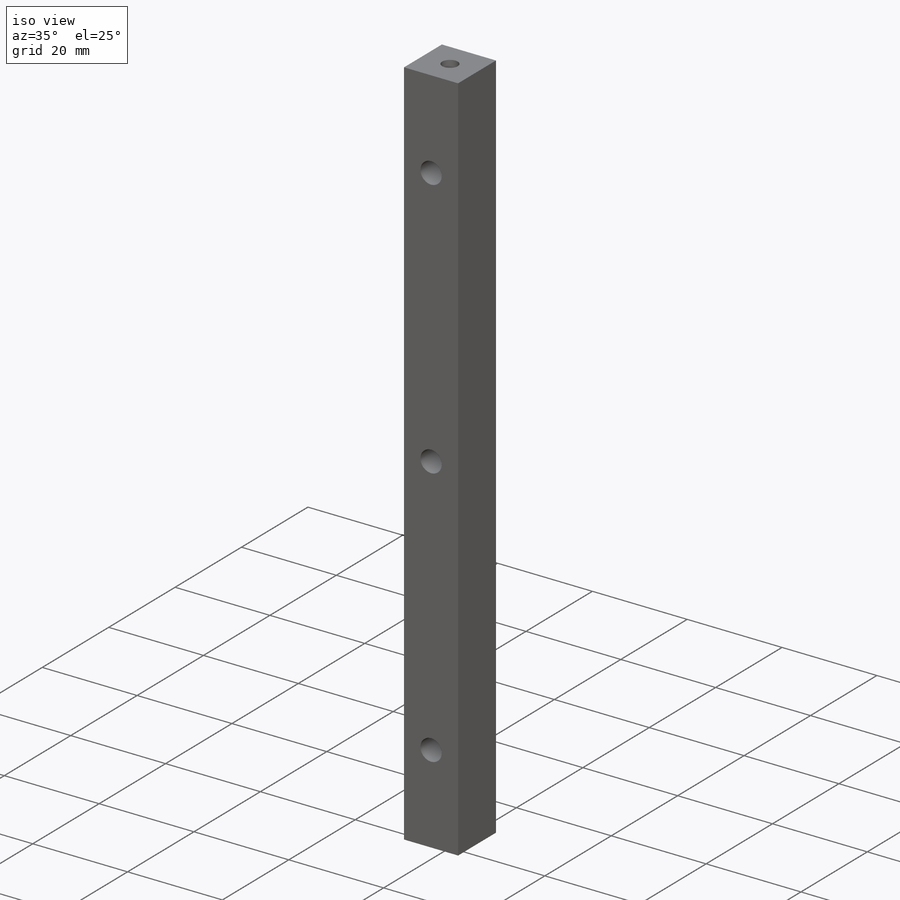
[diagram: iso view]
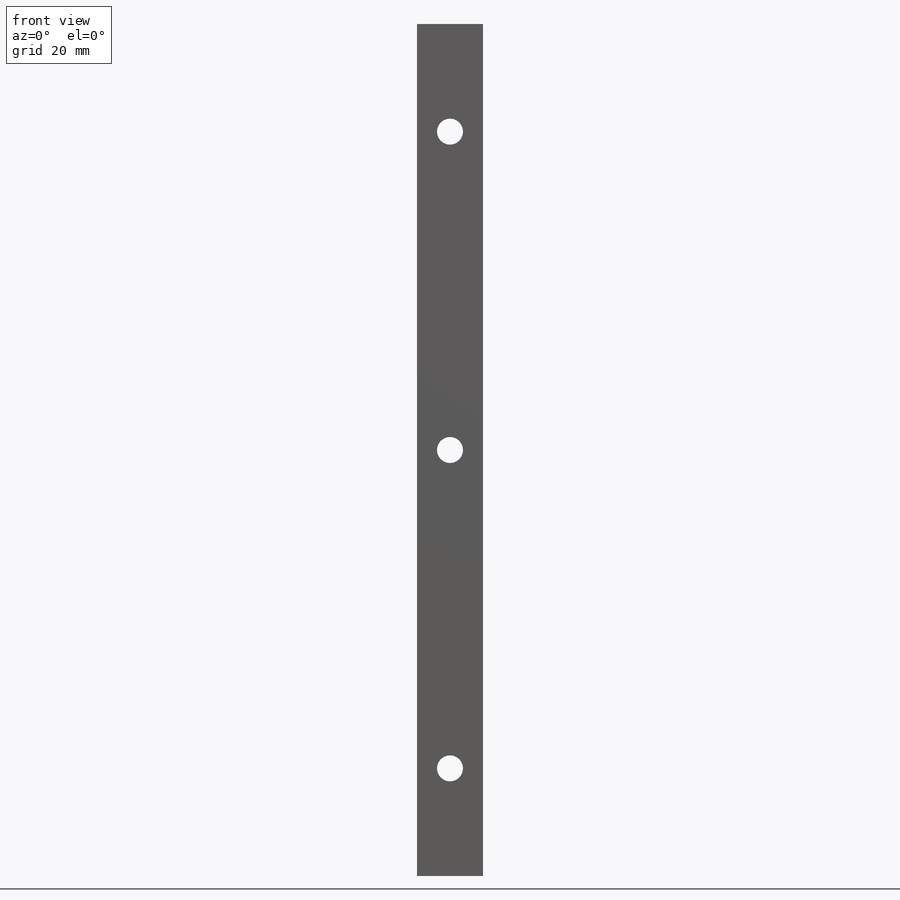
[diagram: front view]
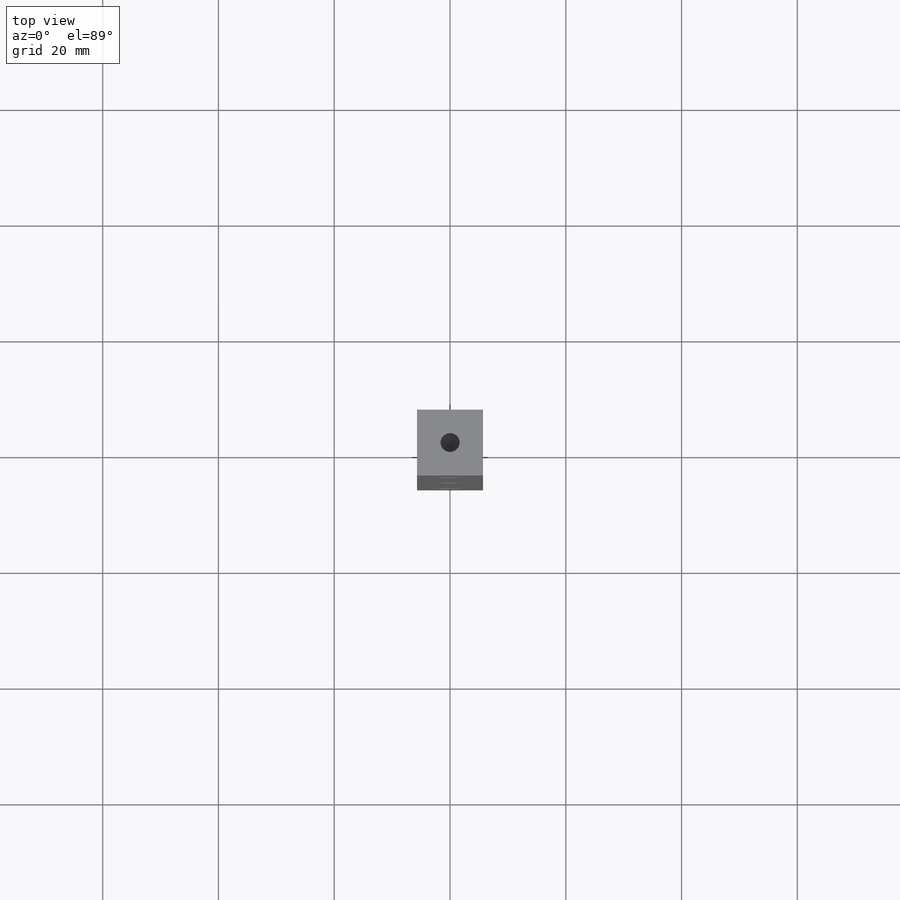
[diagram: top view]
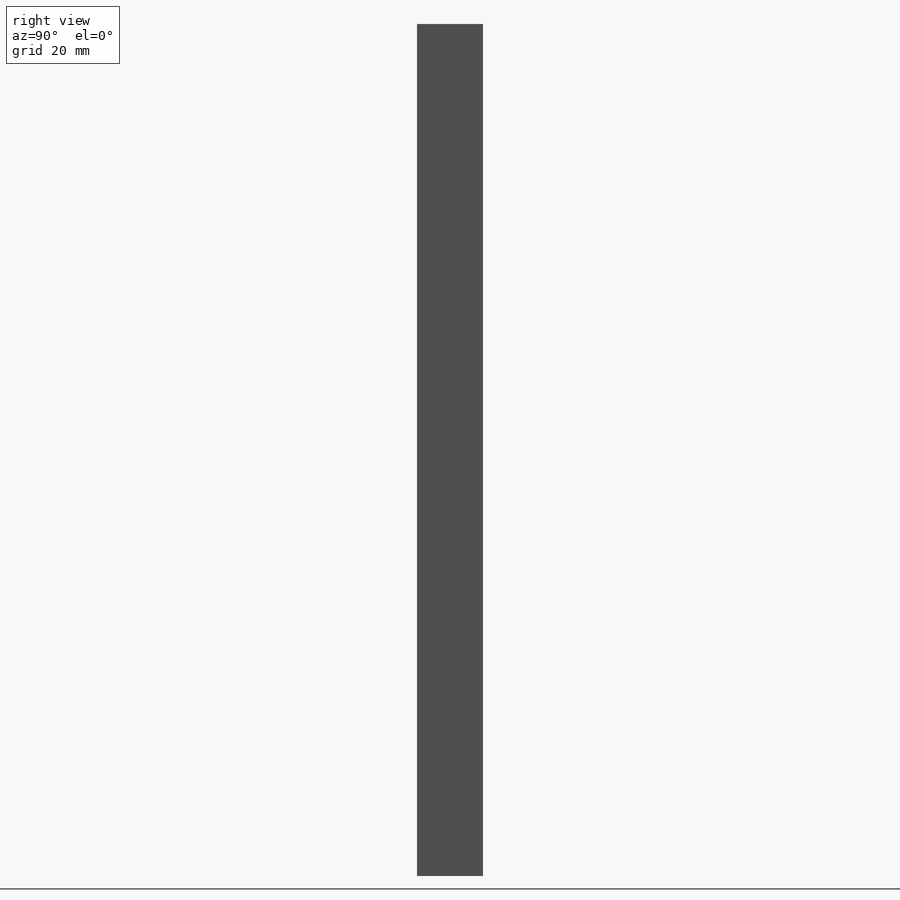
[diagram: right view]
SOLIDWORKS PART (.sldprt)
format: sldprt  version: not decoded by parser v0  size: 219,648 bytes
history: native  units: mm
features: sketch x8, plane x3, hole x3, thread x2, material x1, extrude x1 (+13 scaffold rows collapsed)
feature tree (31):
  scaffold x13  (default folders/planes/origin — collapsed)
  material  "Matériau <non spécifié>"
  plane  "Plan de face"
  plane  "Plan de dessus"
  plane  "Plan de droite"
  sketch  "Esquisse1"  dims[D1=11.4mm D2=11.4mm]
  extrude  "Boss.-Extru.1"  Depth=147.2mm
  hole  "Trou taraudé M41"  Diameter=3.3mm Depth=11.5mm
  sketch  "Esquisse3"
  sketch  "Esquisse2"  dims[hole-wizard template sketch: 47 standard entries collapsed; hole parameters kept: c15.Profondeur du trou pour taraudage=11.5mm c15.D3=~14.816244mm c15.Angle de pointe=118.0deg]
  thread  "Filetage de perçage1"  Diameter=8mm  [1 undecoded]
  hole  "Trou taraudé M42"  Diameter=3.3mm Depth=11.5mm
  sketch  "Esquisse5"
  sketch  "Esquisse4"  dims[hole-wizard template sketch: 47 standard entries collapsed; hole parameters kept: c15.Profondeur du trou pour taraudage=11.5mm c15.D3=~14.816244mm c15.Angle de pointe=118.0deg]
  thread  "Filetage de perçage2"  Diameter=8mm  [1 undecoded]
  sketch  "Esquisse6"  dims[D1=55.0mm D2=55.0mm D3=73.6mm D4=5.7mm D5=5.7mm D6=5.7mm]
  hole  "Dégagement M41"  Diameter=4.5mm Depth=11.4mm
  sketch  "Esquisse8"
  sketch  "Esquisse7"  dims[hole-wizard template sketch: 60 standard entries collapsed; hole parameters kept: c18.Profondeur du perçage jusqu'au prochain=11.4mm]
decode coverage: 11 of 14 modeling features carry decoded parameters
note: ~ marks probable driven/reference dimensions
note: 2 parameter values undecoded
note: suppression state not decoded; provenance and decode notes live in map.json
